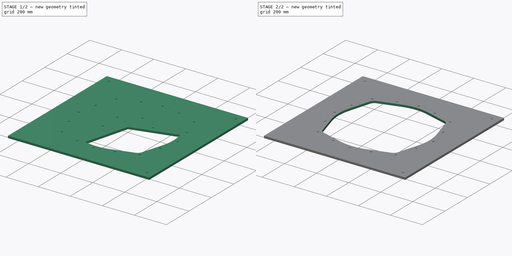
[diagram: build sequence overview — one tinted view per stage of 2, left to right]
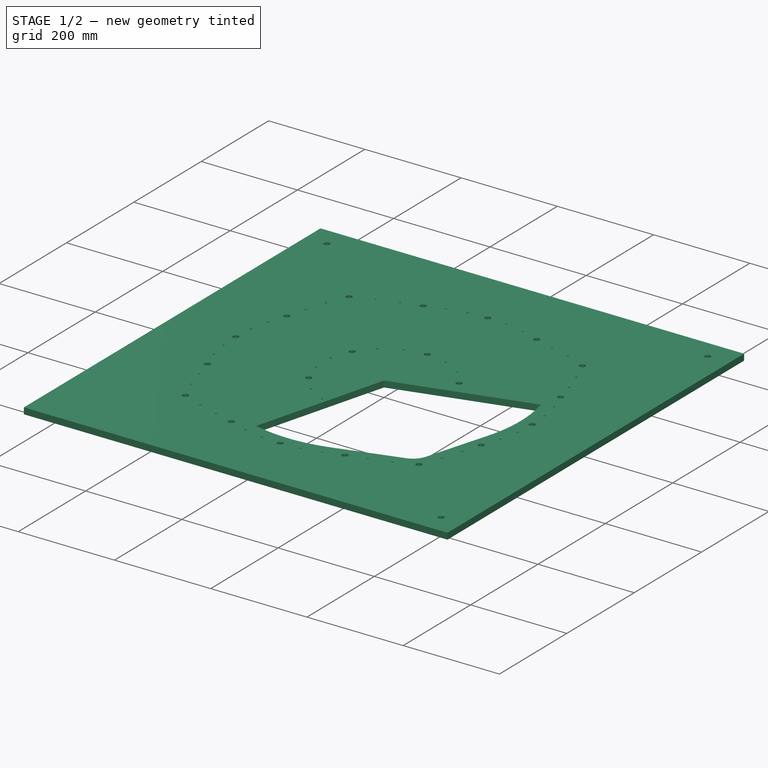
[diagram: stage 1 of 2 — iso view after this stage's code; geometry added in this stage tinted green]
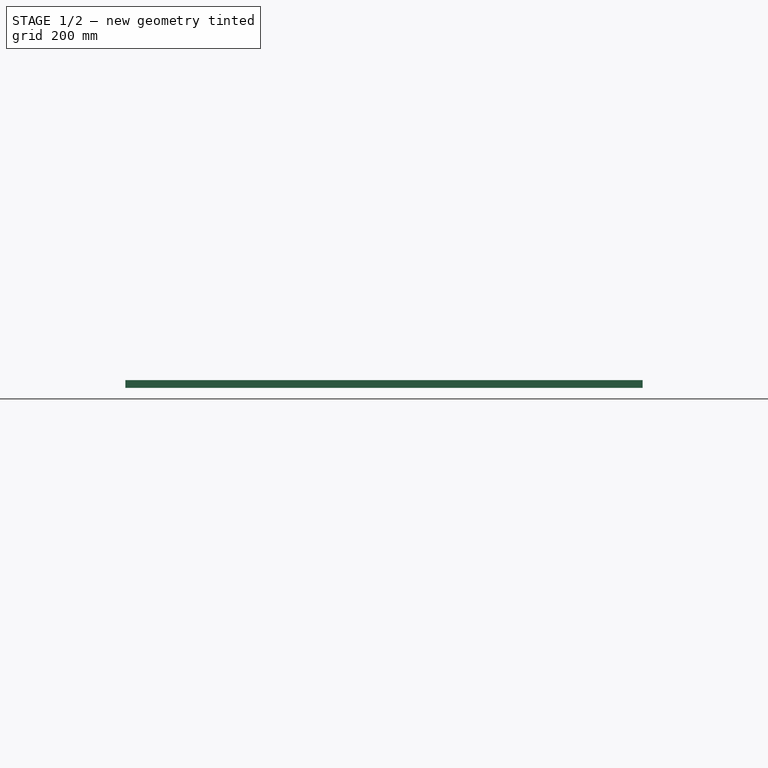
[diagram: stage 1 of 2 — front view after this stage's code; geometry added in this stage tinted green]
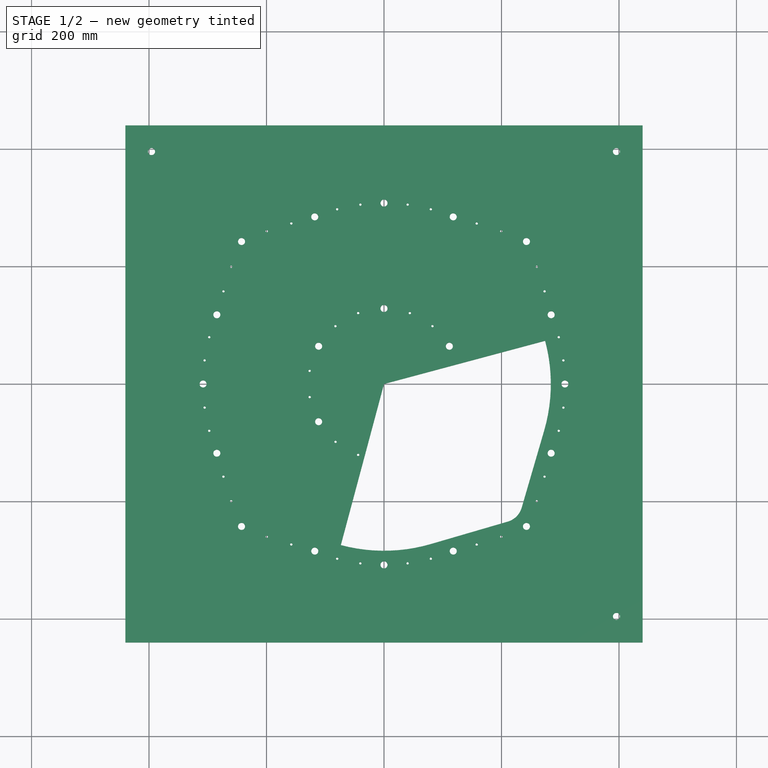
[diagram: stage 1 of 2 — top view after this stage's code; geometry added in this stage tinted green]
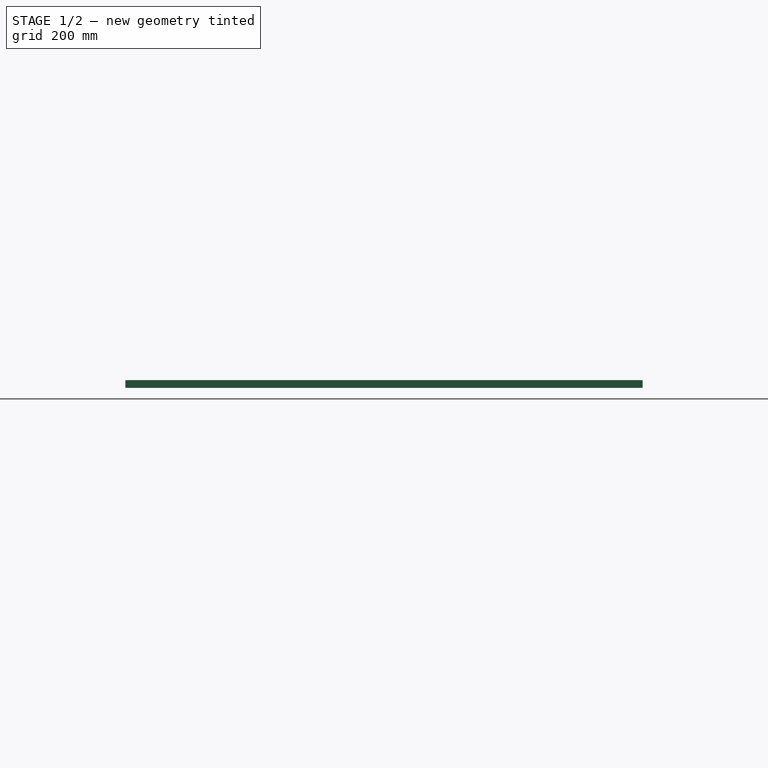
[diagram: stage 1 of 2 — right view after this stage's code; geometry added in this stage tinted green]
FCSTD DOCUMENT  (FreeCAD 0.21R33771 (Git))
Label: Stator_Mold_Surround_Circular
License: All rights reserved
LicenseURL: http://en.wikipedia.org/wiki/All_rights_reserved
objects: Spreadsheet::Sheet×1, PartDesign::Plane×1, Sketcher::SketchObject×1, App::Link×1, PartDesign::SubShapeBinder×1, PartDesign::FeatureBase×1, PartDesign::Pocket×1, PartDesign::PolarPattern×1, PartDesign::Body×1
note: 8 computed .brp shape members not serialized (recipe doc carries the construction recipe); baked Part::Feature solids carry a one-line shape summary decoded from their .brp
EXTERNAL_REF file=../../../Master_of_Puppets.FCStd obj=Alternator
EXTERNAL_REF file=../../../Master_of_Puppets.FCStd obj=Spreadsheet
EXTERNAL_REF file=Stator_Mold_BoltShaftLayer_Circular.FCStd obj=Body

FEATURE [Spreadsheet::Sheet] Spreadsheet
  cells = A1='Inputs; A2='StatorThickness; B2='RotorDiskRadius; C2='NumberOfHoles; A3(StatorThickness)==Master_of_Puppets#Spreadsheet.StatorThickness; B3(RotorDiskRadius)==Master_of_Puppets#Spreadsheet.RotorDiskRadius; C3(NumberOfHoles)==Master_of_Puppets#Alternator.NumberOfStatorHoles; A4='EarAngle; B4='EarSize; C4='StatorHolesCircumradius; A5(EarAngle)==Master_of_Puppets#Alternator.EarAngle; B5(EarSize)==Master_of_Puppets#Alternator.EarSize; C5(StatorHolesCircumradius)==Master_of_Puppets#Alternator.StatorHolesCircumradius; A6='StatorMoldHolesSketchAngle; A7(StatorMoldHolesSketchAngle)==Master_of_Puppets#Alternator.StatorMoldHolesSketchAngle
FEATURE [PartDesign::Plane] DatumPlane001  label="DatumPlane"
  AttachmentOffset = pos=(0,0,13) rot=(0,0,1;0rad)
  Length = 1056.48
  MapMode = 5
  Placement = pos=(0,0,13) rot=(0,0,1;0rad)
  ResizeMode = 0
  Support = -> [XY_Plane]
  Width = 1056.48
  expr: .AttachmentOffset.Base.z = Spreadsheet.StatorThickness
FEATURE [Sketcher::SketchObject] Sketch004  label="ResinCastSketch"
  AttachmentOffset = pos=(0,0,0) rot=(0,0,1;0.785398rad)
  FullyConstrained = true
  MapMode = 5
  Placement = pos=(0,0,13) rot=(0,0,1;0.785398rad)
  Support = -> [DatumPlane001]
  expr: .AttachmentOffset.Rotation.Angle = Spreadsheet.StatorMoldHolesSketchAngle
  expr: Constraints[3] = Spreadsheet.StatorHolesCircumradius
  expr: Constraints[9] = Spreadsheet.EarSize
  sketch-geometry (10):
    g0: Circle CenterX=0 CenterY=0 CenterZ=0 NormalX=0 NormalY=0 NormalZ=1 AngleXU=0 Radius=284
    g1: LineSegment StartX=0 StartY=0 StartZ=0 EndX=0 EndY=-284 EndZ=0
    g2: Circle CenterX=0 CenterY=-284 CenterZ=0 NormalX=0 NormalY=0 NormalZ=1 AngleXU=0 Radius=35
    g3: LineSegment StartX=16.8324 StartY=-314.687 StartZ=0 EndX=136.583 EndY=-249 EndZ=0
    g4: LineSegment StartX=-16.8324 StartY=-314.687 StartZ=0 EndX=-136.583 EndY=-249 EndZ=0
    g5: ArcOfCircle CenterX=0 CenterY=-284 CenterZ=0 NormalX=0 NormalY=0 NormalZ=1 AngleXU=0 Radius=35 StartAngle=4.21068 EndAngle=5.2141
    g6: LineSegment StartX=0 StartY=0 StartZ=0 EndX=-245.951 EndY=-142 EndZ=0
    g7: LineSegment StartX=0 StartY=0 StartZ=0 EndX=245.951 EndY=-142 EndZ=0
    g8: ArcOfCircle CenterX=0 CenterY=0 CenterZ=0 NormalX=0 NormalY=0 NormalZ=1 AngleXU=0 Radius=284 StartAngle=3.66519 EndAngle=4.21068
    g9: ArcOfCircle CenterX=0 CenterY=0 CenterZ=0 NormalX=0 NormalY=0 NormalZ=1 AngleXU=0 Radius=284 StartAngle=5.2141 EndAngle=5.75959
  constraints (24):
    c: Coincident(g0,g-1)
    c: Coincident(g1,g-1)
    c: Vertical(g1)
    c: Radius(g0) = 284
    c: Coincident(g2,g1)
    c: Coincident(g5,g1)
    c: Coincident(g5,g3)
    c: Coincident(g5,g4)
    c: PointOnObject(g5,g0)
    c: Radius(g2) = 35
    c: Coincident(g8,g6)
    c: Coincident(g8,g4)
    c: Coincident(g9,g7)
    c: Coincident(g9,g3)
    c: Coincident(g7,g6)
    c: Coincident(g6,g8)
    c: Coincident(g6,g-1)
    c: Coincident(g9,g6)
    c: Tangent(g3,g2) = -1.5708
    c: Tangent(g4,g0) = 1.5708
    c: Tangent(g4,g2) = 1.5708
    c: Tangent(g3,g0) = -1.5708
    c: Angle(g7,g-1) = 0.523599
    c: Angle(g6,g7) = 2.0944
FEATURE [App::Link] Link  label="Stator_Mold_BoltShaftLayer"
  LinkedObject = -> <external Stator_Mold_BoltShaftLayer_Circular.FCStd>#Body
FEATURE [PartDesign::SubShapeBinder] Binder
  BindCopyOnChange = 0
  BindMode = 0
  ClaimChildren = true
  Context = -> Body [Binder.]
  Fuse = false
  MakeFace = true
  OffsetFill = false
  OffsetIntersection = false
  OffsetJoinType = 0
  OffsetOpenResult = false
  PartialLoad = false
  Refine = true
  Relative = true
  Support = -> [Link]
  _Version = 2
FEATURE [PartDesign::FeatureBase] BaseFeature
  BaseFeature = -> Binder
FEATURE [PartDesign::Pocket] Pocket  label="ResinCastPocket"
  BaseFeature = -> BaseFeature
  Direction = (0,0,-1)
  Length = 5
  Length2 = 100
  Profile = -> Sketch004
  Type = 1
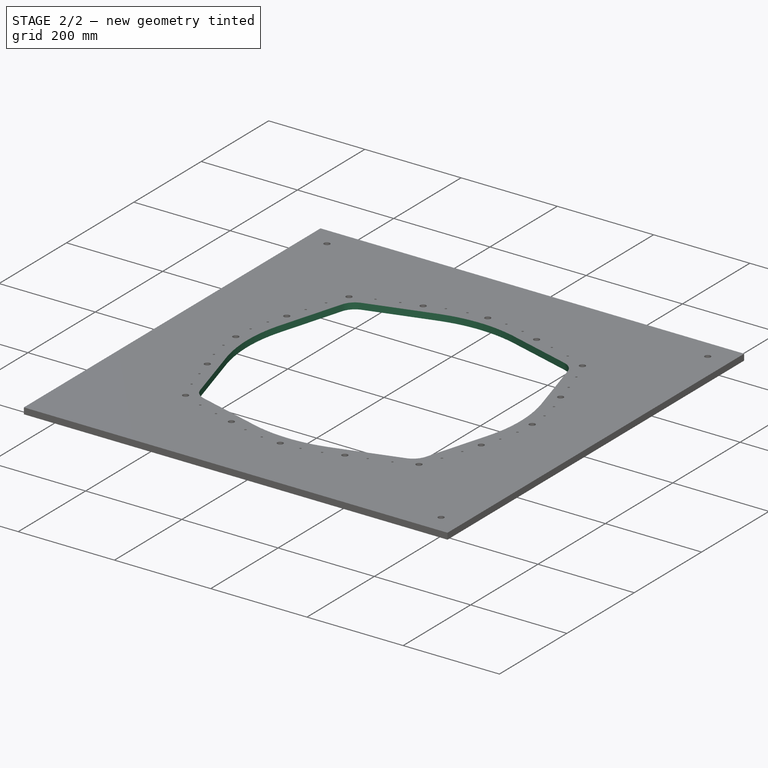
[diagram: stage 2 of 2 — iso view after this stage's code; geometry added in this stage tinted green]
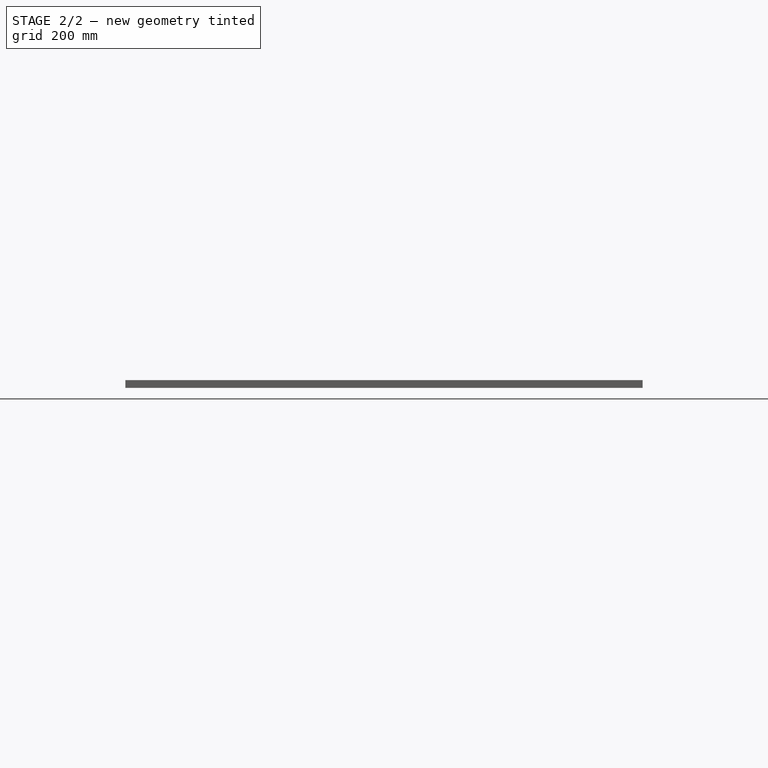
[diagram: stage 2 of 2 — front view after this stage's code; geometry added in this stage tinted green]
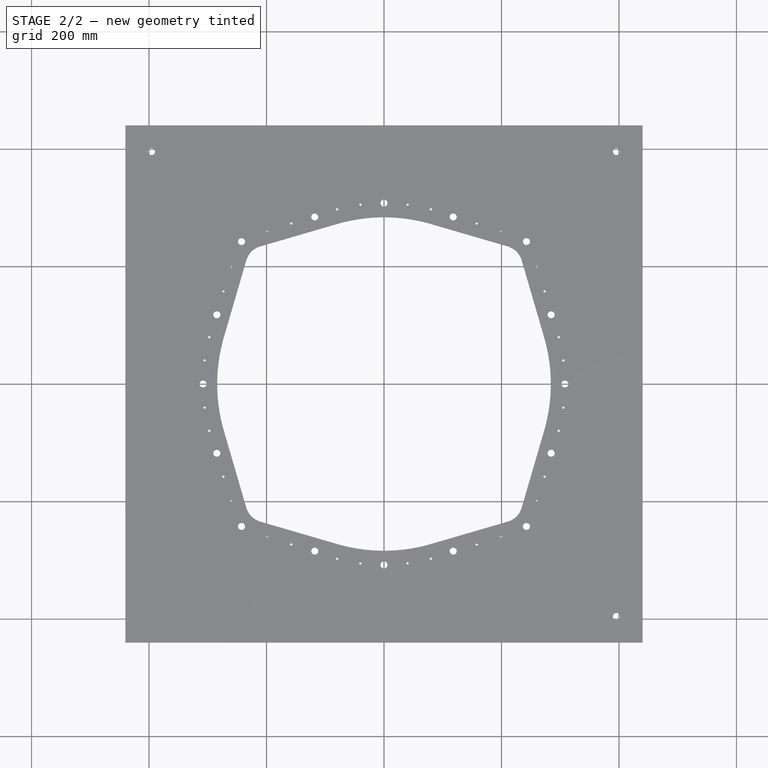
[diagram: stage 2 of 2 — top view after this stage's code; geometry added in this stage tinted green]
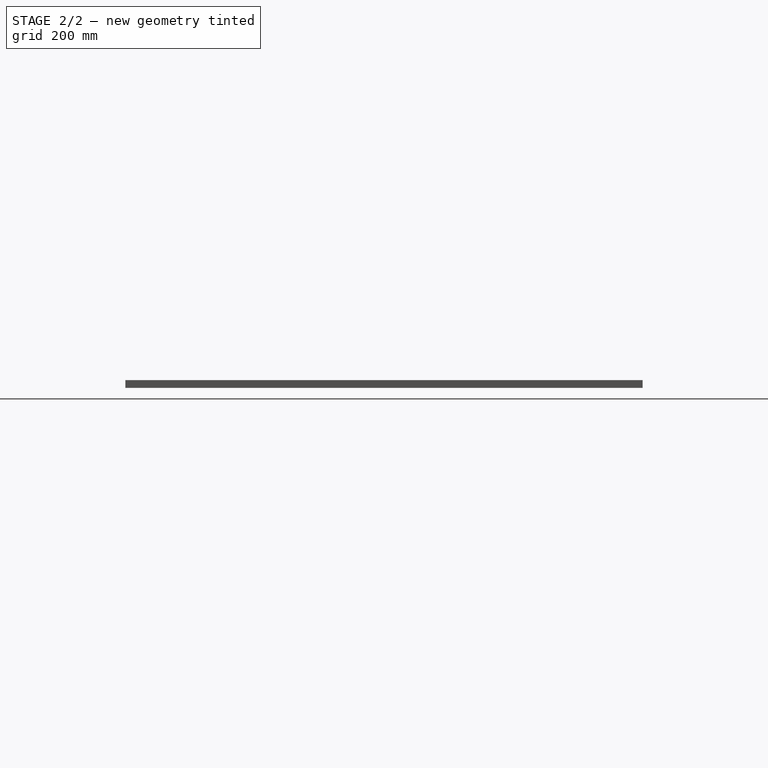
[diagram: stage 2 of 2 — right view after this stage's code; geometry added in this stage tinted green]
FEATURE [PartDesign::PolarPattern] PolarPattern001  label="ResinCastPocketPolarPattern"
  Angle = 360
  Axis = -> Sketch004 [N_Axis]
  BaseFeature = -> Pocket
  Occurrences = 4
  Originals = -> [Pocket]
  expr: Occurrences = Spreadsheet.NumberOfHoles
FEATURE [PartDesign::Body] Body  label="Stator_Mold_Surround"
  BaseFeature = -> Binder
  Group = -> [BaseFeature,DatumPlane001,Sketch004,Pocket,PolarPattern001,Binder]
  Openafpm_Flat = true
  Origin = -> Origin
  Tip = -> PolarPattern001
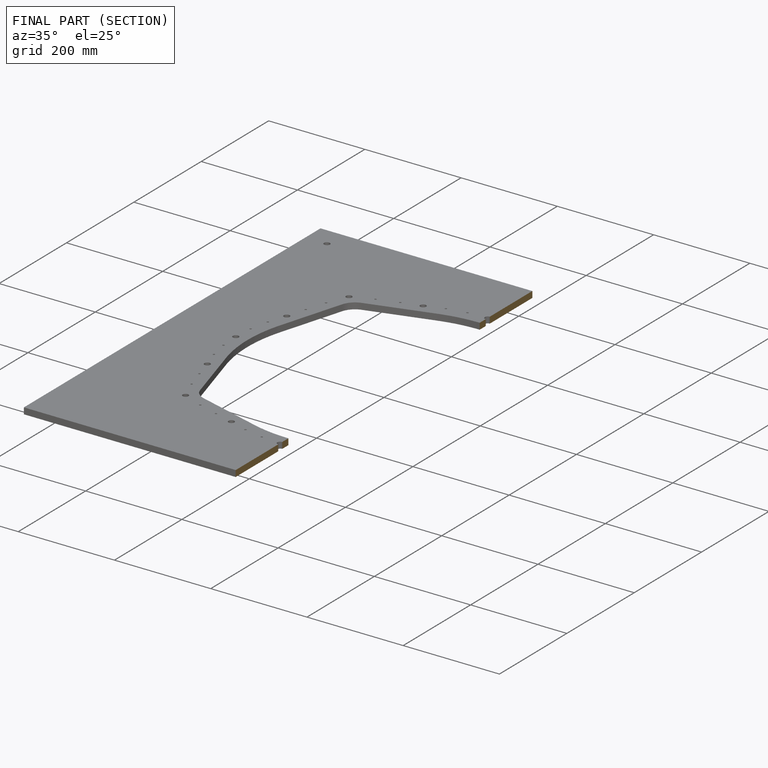
[diagram: finished part — half-section view (interior)]
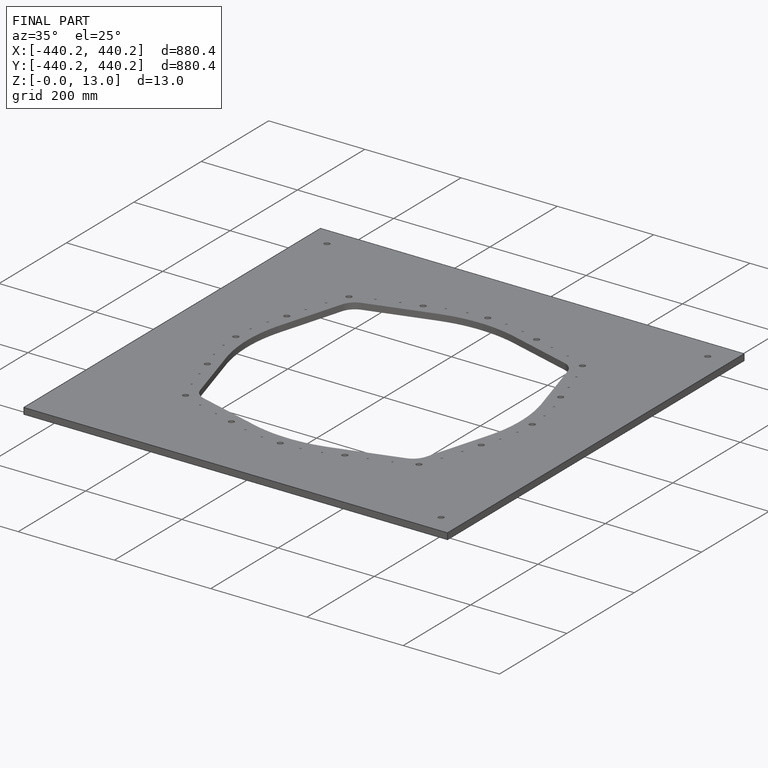
[diagram: finished part — iso view with bounding-box wireframe]
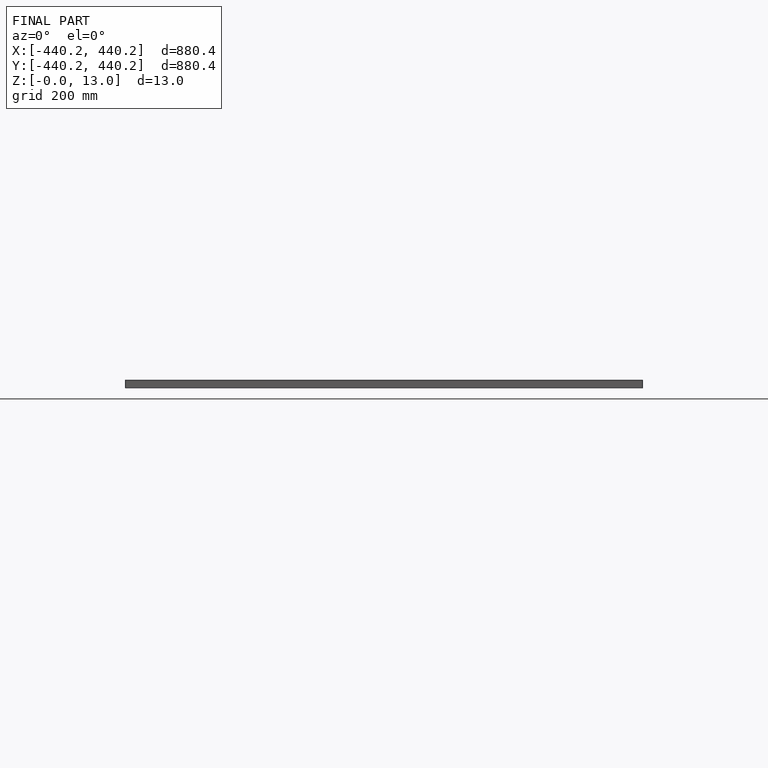
[diagram: finished part — front view with bounding-box wireframe]
